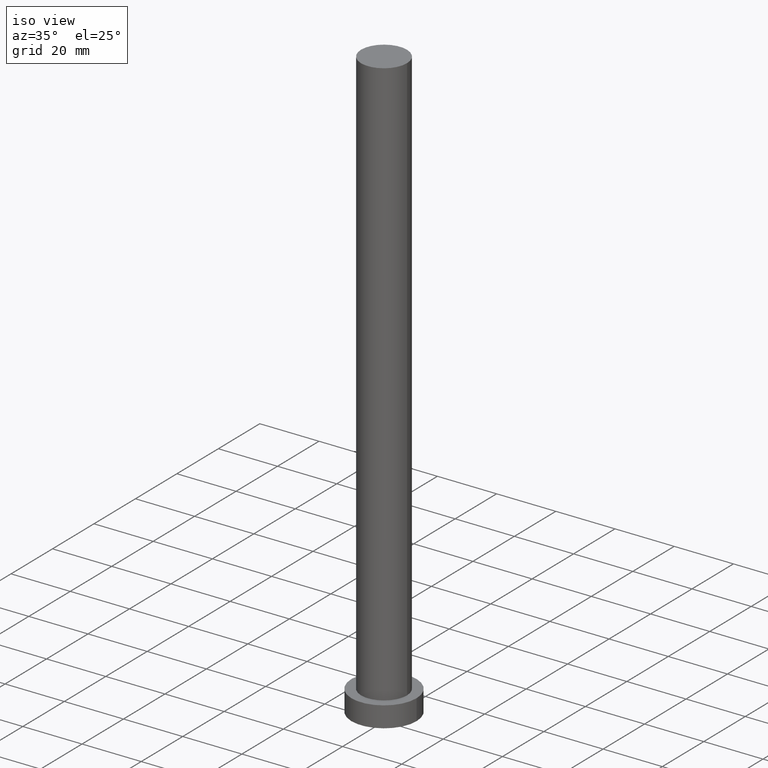
[diagram: clean part render]
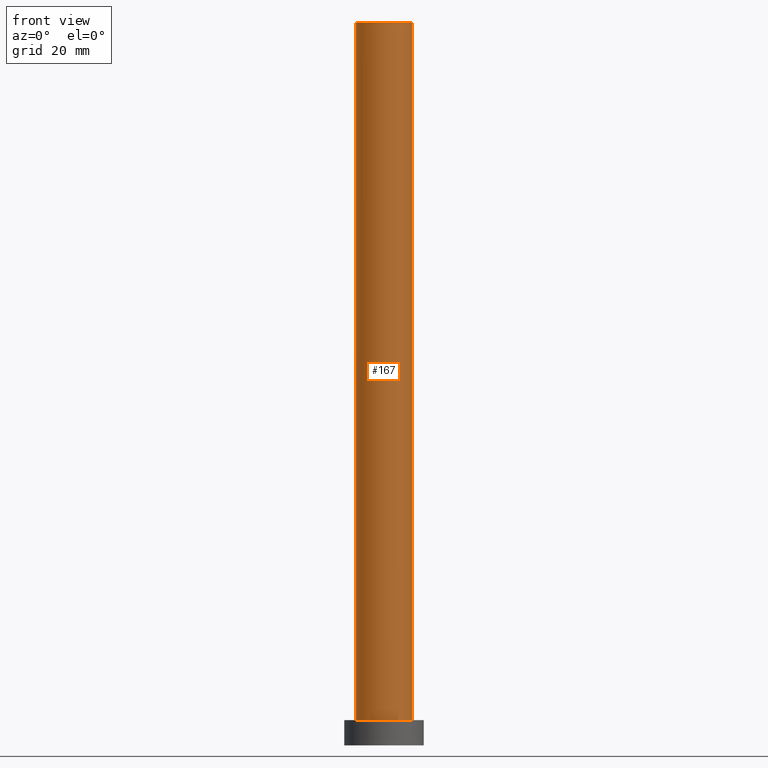
[diagram: tour spotlight — one face highlighted and labeled with its STEP entity id]
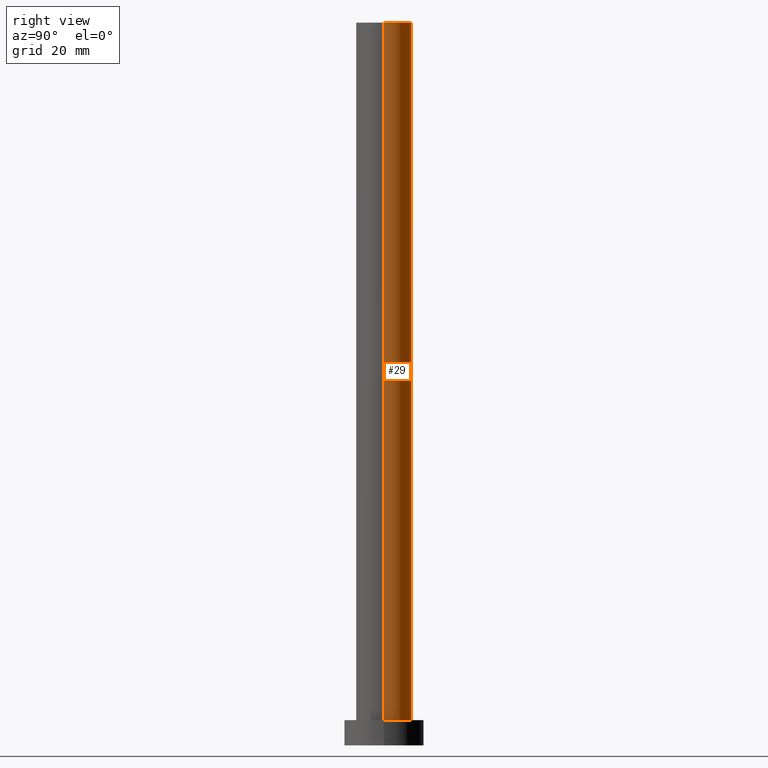
[diagram: tour spotlight — one face highlighted and labeled with its STEP entity id]
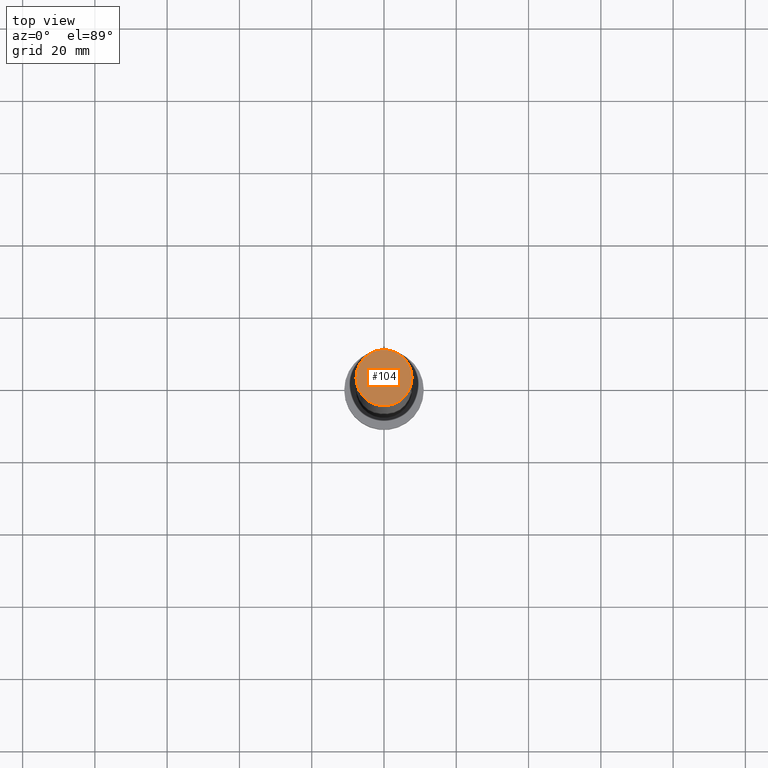
[diagram: tour spotlight — one face highlighted and labeled with its STEP entity id]
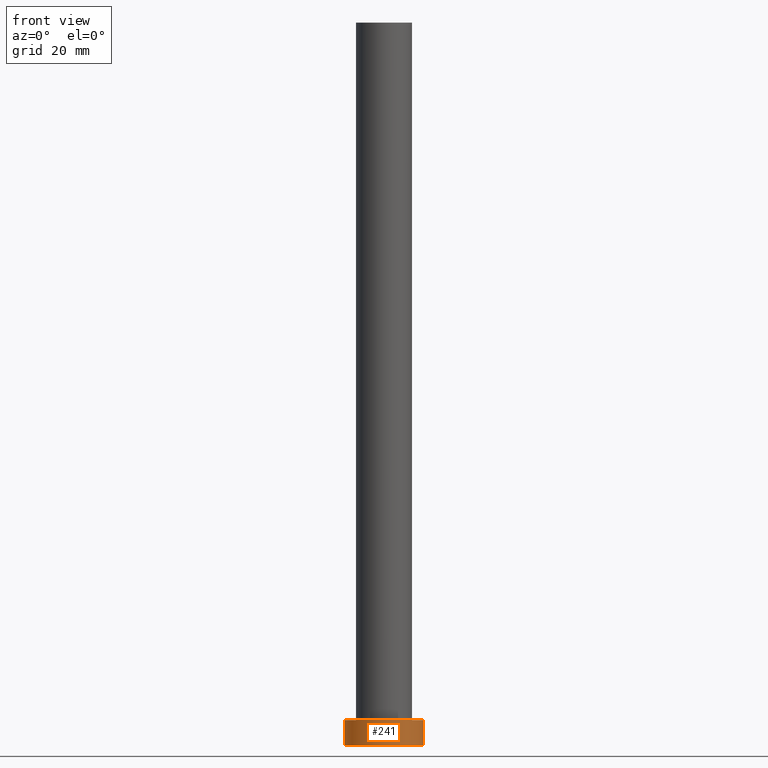
[diagram: tour spotlight — one face highlighted and labeled with its STEP entity id]
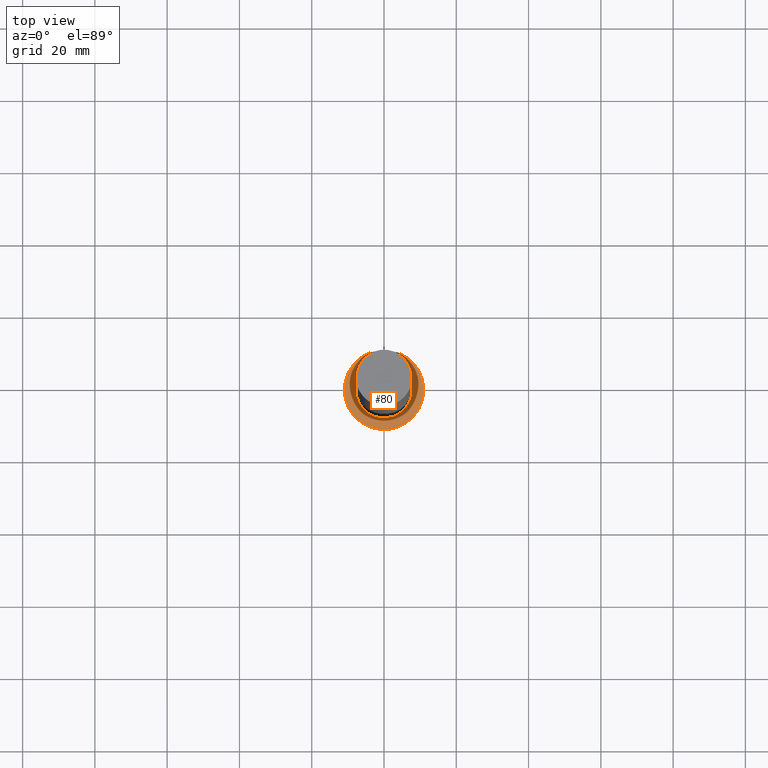
[diagram: tour spotlight — one face highlighted and labeled with its STEP entity id]
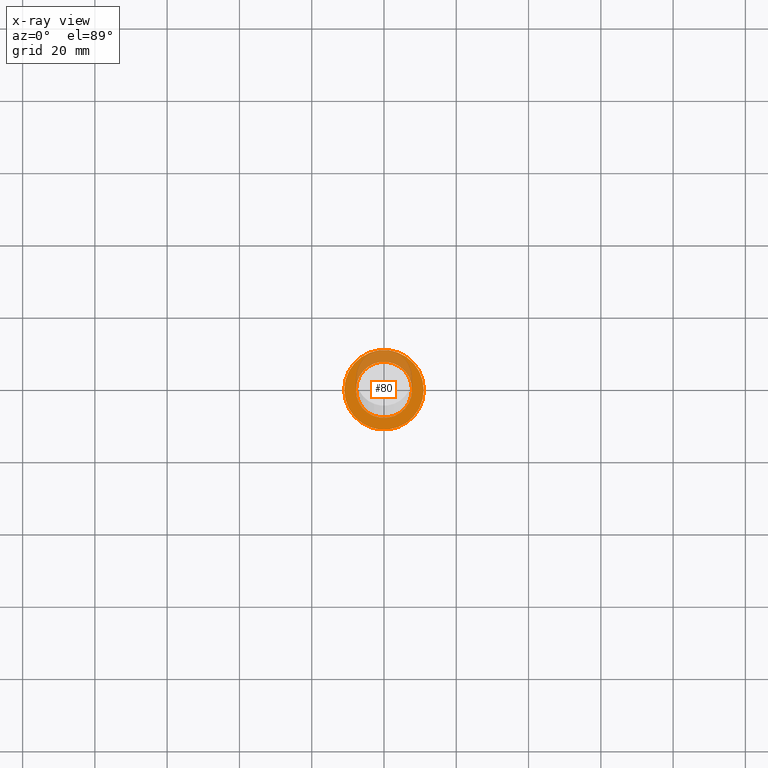
[diagram: x-ray of the same camera — body ghosted, this tour face saturated]
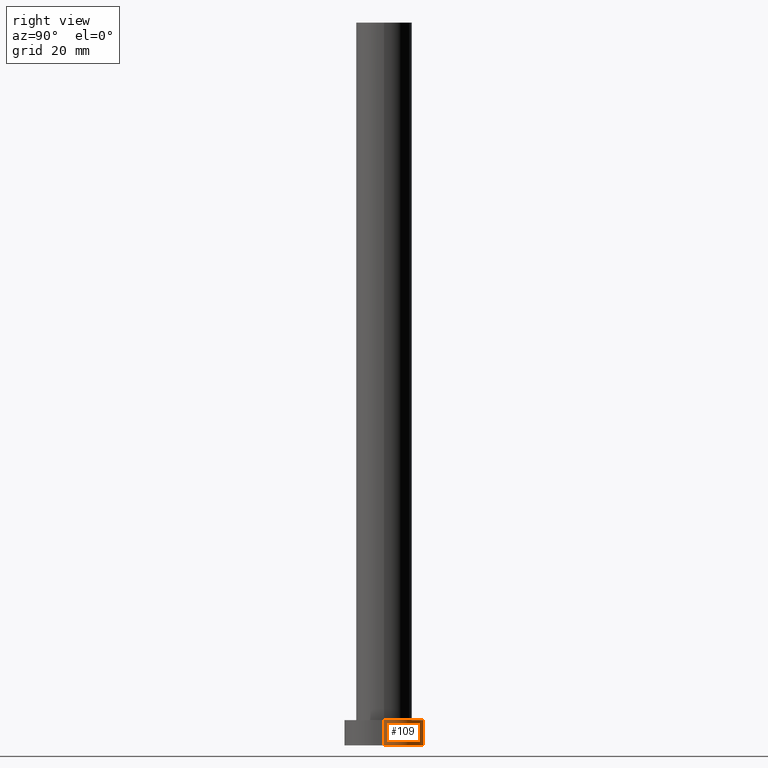
[diagram: tour spotlight — one face highlighted and labeled with its STEP entity id]
A machine part: a face-by-face anatomy tour. The part has 7 B-rep faces; the first image is the clean iso view, then the 6 largest visible faces are spotlighted one at a time (largest first), each with its STEP entity span.

Face 1 — front view, entity #167. In plain terms, the highlighted cylindrical surface (edge-blend (fillet) strip) has radius 7.75 mm, axis along (-0, -0, -1).
Definition (entity closure, byte-faithful):
#13 = LINE ( 'NONE', #198, #194 ) ;
#14 = CARTESIAN_POINT ( 'NONE',  ( -7.750000000000000000, 0.000000000000000000, 7.000000000000000000 ) ) ;
#22 = ORIENTED_EDGE ( 'NONE', *, *, #45, .T. ) ;
#25 = AXIS2_PLACEMENT_3D ( 'NONE', #255, #142, #221 ) ;
#28 = DIRECTION ( 'NONE',  ( 1.000000000000000000, 0.000000000000000000, 0.000000000000000000 ) ) ;
#38 = CARTESIAN_POINT ( 'NONE',  ( 7.750000000000000000, 9.491012693391987787E-16, 200.0000000000000000 ) ) ;
#45 = EDGE_CURVE ( 'NONE', #227, #157, #13, .T. ) ;
#49 = ORIENTED_EDGE ( 'NONE', *, *, #248, .F. ) ;
#56 = CARTESIAN_POINT ( 'NONE',  ( 0.000000000000000000, 0.000000000000000000, 7.000000000000000000 ) ) ;
#63 = CARTESIAN_POINT ( 'NONE',  ( -7.750000000000000000, 0.000000000000000000, 200.0000000000000000 ) ) ;
#72 = CIRCLE ( 'NONE', #94, 7.750000000000000000 ) ;
#82 = DIRECTION ( 'NONE',  ( 0.000000000000000000, 0.000000000000000000, 1.000000000000000000 ) ) ;
#87 = FACE_OUTER_BOUND ( 'NONE', #119, .T. ) ;
#94 = AXIS2_PLACEMENT_3D ( 'NONE', #56, #184, #28 ) ;
#102 = CYLINDRICAL_SURFACE ( 'NONE', #25, 7.750000000000000000 ) ;
#105 = CIRCLE ( 'NONE', #245, 7.750000000000000000 ) ;
#116 = LINE ( 'NONE', #196, #128 ) ;
#117 = EDGE_CURVE ( 'NONE', #157, #173, #72, .T. ) ;
#119 = EDGE_LOOP ( 'NONE', ( #121, #49, #22, #252 ) ) ;
#121 = ORIENTED_EDGE ( 'NONE', *, *, #147, .F. ) ;
#128 = VECTOR ( 'NONE', #197, 1000.000000000000000 ) ;
#142 = DIRECTION ( 'NONE',  ( -0.000000000000000000, -0.000000000000000000, -1.000000000000000000 ) ) ;
#147 = EDGE_CURVE ( 'NONE', #175, #173, #116, .T. ) ;
#157 = VERTEX_POINT ( 'NONE', #14 ) ;
#167 = ADVANCED_FACE ( 'NONE', ( #87 ), #102, .T. ) ;
#173 = VERTEX_POINT ( 'NONE', #186 ) ;
#175 = VERTEX_POINT ( 'NONE', #38 ) ;
#184 = DIRECTION ( 'NONE',  ( 0.000000000000000000, 0.000000000000000000, 1.000000000000000000 ) ) ;
#186 = CARTESIAN_POINT ( 'NONE',  ( 7.750000000000000000, 9.491012693391987787E-16, 7.000000000000000000 ) ) ;
#188 = CARTESIAN_POINT ( 'NONE',  ( 0.000000000000000000, 0.000000000000000000, 200.0000000000000000 ) ) ;
#190 = DIRECTION ( 'NONE',  ( 1.000000000000000000, 0.000000000000000000, 0.000000000000000000 ) ) ;
#194 = VECTOR ( 'NONE', #215, 1000.000000000000000 ) ;
#196 = CARTESIAN_POINT ( 'NONE',  ( 7.750000000000000000, 9.491012693391987787E-16, 200.0000000000000000 ) ) ;
#197 = DIRECTION ( 'NONE',  ( -0.000000000000000000, -0.000000000000000000, -1.000000000000000000 ) ) ;
#198 = CARTESIAN_POINT ( 'NONE',  ( -7.750000000000000000, 0.000000000000000000, 200.0000000000000000 ) ) ;
#215 = DIRECTION ( 'NONE',  ( -0.000000000000000000, -0.000000000000000000, -1.000000000000000000 ) ) ;
#221 = DIRECTION ( 'NONE',  ( -1.000000000000000000, 0.000000000000000000, 0.000000000000000000 ) ) ;
#227 = VERTEX_POINT ( 'NONE', #63 ) ;
#245 = AXIS2_PLACEMENT_3D ( 'NONE', #188, #82, #190 ) ;
#248 = EDGE_CURVE ( 'NONE', #227, #175, #105, .T. ) ;
#252 = ORIENTED_EDGE ( 'NONE', *, *, #117, .T. ) ;
#255 = CARTESIAN_POINT ( 'NONE',  ( 0.000000000000000000, 0.000000000000000000, 200.0000000000000000 ) ) ;

Face 2 — right view, entity #29. In plain terms, the highlighted cylindrical surface (edge-blend (fillet) strip) has radius 7.75 mm, axis along (-0, -0, -1).
Definition (entity closure, byte-faithful):
#1 = DIRECTION ( 'NONE',  ( 0.000000000000000000, 0.000000000000000000, 1.000000000000000000 ) ) ;
#11 = ORIENTED_EDGE ( 'NONE', *, *, #206, .T. ) ;
#13 = LINE ( 'NONE', #198, #194 ) ;
#14 = CARTESIAN_POINT ( 'NONE',  ( -7.750000000000000000, 0.000000000000000000, 7.000000000000000000 ) ) ;
#29 = ADVANCED_FACE ( 'NONE', ( #77 ), #253, .T. ) ;
#30 = DIRECTION ( 'NONE',  ( 1.000000000000000000, 0.000000000000000000, 0.000000000000000000 ) ) ;
#33 = CIRCLE ( 'NONE', #237, 7.750000000000000000 ) ;
#37 = CARTESIAN_POINT ( 'NONE',  ( 0.000000000000000000, 0.000000000000000000, 7.000000000000000000 ) ) ;
#38 = CARTESIAN_POINT ( 'NONE',  ( 7.750000000000000000, 9.491012693391987787E-16, 200.0000000000000000 ) ) ;
#45 = EDGE_CURVE ( 'NONE', #227, #157, #13, .T. ) ;
#51 = CARTESIAN_POINT ( 'NONE',  ( 0.000000000000000000, 0.000000000000000000, 200.0000000000000000 ) ) ;
#63 = CARTESIAN_POINT ( 'NONE',  ( -7.750000000000000000, 0.000000000000000000, 200.0000000000000000 ) ) ;
#68 = ORIENTED_EDGE ( 'NONE', *, *, #86, .F. ) ;
#74 = CARTESIAN_POINT ( 'NONE',  ( 0.000000000000000000, 0.000000000000000000, 200.0000000000000000 ) ) ;
#76 = AXIS2_PLACEMENT_3D ( 'NONE', #74, #122, #229 ) ;
#77 = FACE_OUTER_BOUND ( 'NONE', #208, .T. ) ;
#86 = EDGE_CURVE ( 'NONE', #175, #227, #33, .T. ) ;
#89 = AXIS2_PLACEMENT_3D ( 'NONE', #37, #1, #219 ) ;
#116 = LINE ( 'NONE', #196, #128 ) ;
#122 = DIRECTION ( 'NONE',  ( -0.000000000000000000, -0.000000000000000000, -1.000000000000000000 ) ) ;
#128 = VECTOR ( 'NONE', #197, 1000.000000000000000 ) ;
#145 = CIRCLE ( 'NONE', #89, 7.750000000000000000 ) ;
#147 = EDGE_CURVE ( 'NONE', #175, #173, #116, .T. ) ;
#157 = VERTEX_POINT ( 'NONE', #14 ) ;
#173 = VERTEX_POINT ( 'NONE', #186 ) ;
#175 = VERTEX_POINT ( 'NONE', #38 ) ;
#186 = CARTESIAN_POINT ( 'NONE',  ( 7.750000000000000000, 9.491012693391987787E-16, 7.000000000000000000 ) ) ;
#192 = ORIENTED_EDGE ( 'NONE', *, *, #45, .F. ) ;
#194 = VECTOR ( 'NONE', #215, 1000.000000000000000 ) ;
#196 = CARTESIAN_POINT ( 'NONE',  ( 7.750000000000000000, 9.491012693391987787E-16, 200.0000000000000000 ) ) ;
#197 = DIRECTION ( 'NONE',  ( -0.000000000000000000, -0.000000000000000000, -1.000000000000000000 ) ) ;
#198 = CARTESIAN_POINT ( 'NONE',  ( -7.750000000000000000, 0.000000000000000000, 200.0000000000000000 ) ) ;
#201 = DIRECTION ( 'NONE',  ( 0.000000000000000000, 0.000000000000000000, 1.000000000000000000 ) ) ;
#206 = EDGE_CURVE ( 'NONE', #173, #157, #145, .T. ) ;
#208 = EDGE_LOOP ( 'NONE', ( #68, #222, #11, #192 ) ) ;
#215 = DIRECTION ( 'NONE',  ( -0.000000000000000000, -0.000000000000000000, -1.000000000000000000 ) ) ;
#219 = DIRECTION ( 'NONE',  ( 1.000000000000000000, 0.000000000000000000, 0.000000000000000000 ) ) ;
#222 = ORIENTED_EDGE ( 'NONE', *, *, #147, .T. ) ;
#227 = VERTEX_POINT ( 'NONE', #63 ) ;
#229 = DIRECTION ( 'NONE',  ( -1.000000000000000000, 0.000000000000000000, 0.000000000000000000 ) ) ;
#237 = AXIS2_PLACEMENT_3D ( 'NONE', #51, #201, #30 ) ;
#253 = CYLINDRICAL_SURFACE ( 'NONE', #76, 7.750000000000000000 ) ;

Face 3 — top view, entity #104. In plain terms, the highlighted planar face has unit normal (0, 0, 1).
Definition (entity closure, byte-faithful):
#6 = ORIENTED_EDGE ( 'NONE', *, *, #248, .T. ) ;
#17 = FACE_OUTER_BOUND ( 'NONE', #246, .T. ) ;
#30 = DIRECTION ( 'NONE',  ( 1.000000000000000000, 0.000000000000000000, 0.000000000000000000 ) ) ;
#33 = CIRCLE ( 'NONE', #237, 7.750000000000000000 ) ;
#38 = CARTESIAN_POINT ( 'NONE',  ( 7.750000000000000000, 9.491012693391987787E-16, 200.0000000000000000 ) ) ;
#51 = CARTESIAN_POINT ( 'NONE',  ( 0.000000000000000000, 0.000000000000000000, 200.0000000000000000 ) ) ;
#63 = CARTESIAN_POINT ( 'NONE',  ( -7.750000000000000000, 0.000000000000000000, 200.0000000000000000 ) ) ;
#78 = DIRECTION ( 'NONE',  ( 1.000000000000000000, 0.000000000000000000, -0.000000000000000000 ) ) ;
#82 = DIRECTION ( 'NONE',  ( 0.000000000000000000, 0.000000000000000000, 1.000000000000000000 ) ) ;
#86 = EDGE_CURVE ( 'NONE', #175, #227, #33, .T. ) ;
#99 = PLANE ( 'NONE',  #189 ) ;
#104 = ADVANCED_FACE ( 'NONE', ( #17 ), #99, .T. ) ;
#105 = CIRCLE ( 'NONE', #245, 7.750000000000000000 ) ;
#129 = ORIENTED_EDGE ( 'NONE', *, *, #86, .T. ) ;
#156 = CARTESIAN_POINT ( 'NONE',  ( 0.000000000000000000, 0.000000000000000000, 200.0000000000000000 ) ) ;
#175 = VERTEX_POINT ( 'NONE', #38 ) ;
#183 = DIRECTION ( 'NONE',  ( 0.000000000000000000, 0.000000000000000000, 1.000000000000000000 ) ) ;
#188 = CARTESIAN_POINT ( 'NONE',  ( 0.000000000000000000, 0.000000000000000000, 200.0000000000000000 ) ) ;
#189 = AXIS2_PLACEMENT_3D ( 'NONE', #156, #183, #78 ) ;
#190 = DIRECTION ( 'NONE',  ( 1.000000000000000000, 0.000000000000000000, 0.000000000000000000 ) ) ;
#201 = DIRECTION ( 'NONE',  ( 0.000000000000000000, 0.000000000000000000, 1.000000000000000000 ) ) ;
#227 = VERTEX_POINT ( 'NONE', #63 ) ;
#237 = AXIS2_PLACEMENT_3D ( 'NONE', #51, #201, #30 ) ;
#245 = AXIS2_PLACEMENT_3D ( 'NONE', #188, #82, #190 ) ;
#246 = EDGE_LOOP ( 'NONE', ( #6, #129 ) ) ;
#248 = EDGE_CURVE ( 'NONE', #227, #175, #105, .T. ) ;

Face 4 — front view, entity #241. In plain terms, the highlighted cylindrical surface (partial cylindrical patch) has radius 11 mm, axis along (-0, -0, -1).
Definition (entity closure, byte-faithful):
#12 = CIRCLE ( 'NONE', #111, 11.00000000000000000 ) ;
#15 = ORIENTED_EDGE ( 'NONE', *, *, #24, .F. ) ;
#24 = EDGE_CURVE ( 'NONE', #247, #178, #154, .T. ) ;
#34 = CARTESIAN_POINT ( 'NONE',  ( 11.00000000000000000, 1.347111479062088405E-15, 7.000000000000000000 ) ) ;
#35 = DIRECTION ( 'NONE',  ( 0.000000000000000000, 0.000000000000000000, 1.000000000000000000 ) ) ;
#44 = ORIENTED_EDGE ( 'NONE', *, *, #67, .F. ) ;
#53 = VERTEX_POINT ( 'NONE', #228 ) ;
#54 = EDGE_CURVE ( 'NONE', #53, #243, #231, .T. ) ;
#59 = AXIS2_PLACEMENT_3D ( 'NONE', #202, #35, #127 ) ;
#67 = EDGE_CURVE ( 'NONE', #53, #247, #12, .T. ) ;
#70 = ORIENTED_EDGE ( 'NONE', *, *, #225, .T. ) ;
#71 = AXIS2_PLACEMENT_3D ( 'NONE', #101, #125, #205 ) ;
#83 = CARTESIAN_POINT ( 'NONE',  ( 11.00000000000000000, 1.347111479062088405E-15, 7.000000000000000000 ) ) ;
#96 = DIRECTION ( 'NONE',  ( -0.000000000000000000, -0.000000000000000000, -1.000000000000000000 ) ) ;
#101 = CARTESIAN_POINT ( 'NONE',  ( 0.000000000000000000, 0.000000000000000000, 7.000000000000000000 ) ) ;
#111 = AXIS2_PLACEMENT_3D ( 'NONE', #199, #249, #179 ) ;
#123 = CYLINDRICAL_SURFACE ( 'NONE', #71, 11.00000000000000000 ) ;
#125 = DIRECTION ( 'NONE',  ( -0.000000000000000000, -0.000000000000000000, -1.000000000000000000 ) ) ;
#127 = DIRECTION ( 'NONE',  ( 1.000000000000000000, 0.000000000000000000, 0.000000000000000000 ) ) ;
#132 = VECTOR ( 'NONE', #96, 1000.000000000000000 ) ;
#139 = EDGE_LOOP ( 'NONE', ( #15, #44, #230, #70 ) ) ;
#150 = CARTESIAN_POINT ( 'NONE',  ( -11.00000000000000000, 0.000000000000000000, 7.000000000000000000 ) ) ;
#151 = CIRCLE ( 'NONE', #59, 11.00000000000000000 ) ;
#154 = LINE ( 'NONE', #34, #155 ) ;
#155 = VECTOR ( 'NONE', #254, 1000.000000000000000 ) ;
#164 = CARTESIAN_POINT ( 'NONE',  ( 11.00000000000000000, 1.347111479062088405E-15, 0.000000000000000000 ) ) ;
#178 = VERTEX_POINT ( 'NONE', #164 ) ;
#179 = DIRECTION ( 'NONE',  ( 1.000000000000000000, 0.000000000000000000, 0.000000000000000000 ) ) ;
#187 = FACE_OUTER_BOUND ( 'NONE', #139, .T. ) ;
#199 = CARTESIAN_POINT ( 'NONE',  ( 0.000000000000000000, 0.000000000000000000, 7.000000000000000000 ) ) ;
#202 = CARTESIAN_POINT ( 'NONE',  ( 0.000000000000000000, 0.000000000000000000, 0.000000000000000000 ) ) ;
#204 = CARTESIAN_POINT ( 'NONE',  ( -11.00000000000000000, 0.000000000000000000, 0.000000000000000000 ) ) ;
#205 = DIRECTION ( 'NONE',  ( -1.000000000000000000, 0.000000000000000000, 0.000000000000000000 ) ) ;
#225 = EDGE_CURVE ( 'NONE', #243, #178, #151, .T. ) ;
#228 = CARTESIAN_POINT ( 'NONE',  ( -11.00000000000000000, 0.000000000000000000, 7.000000000000000000 ) ) ;
#230 = ORIENTED_EDGE ( 'NONE', *, *, #54, .T. ) ;
#231 = LINE ( 'NONE', #150, #132 ) ;
#241 = ADVANCED_FACE ( 'NONE', ( #187 ), #123, .T. ) ;
#243 = VERTEX_POINT ( 'NONE', #204 ) ;
#247 = VERTEX_POINT ( 'NONE', #83 ) ;
#249 = DIRECTION ( 'NONE',  ( 0.000000000000000000, 0.000000000000000000, 1.000000000000000000 ) ) ;
#254 = DIRECTION ( 'NONE',  ( -0.000000000000000000, -0.000000000000000000, -1.000000000000000000 ) ) ;

Face 5 — top view, entity #80. An x-ray twin of the same camera follows (body ghosted, this face saturated) — the face is partly hidden behind the body. In plain terms, the highlighted planar face has unit normal (0, 0, 1).
Definition (entity closure, byte-faithful):
#1 = DIRECTION ( 'NONE',  ( 0.000000000000000000, 0.000000000000000000, 1.000000000000000000 ) ) ;
#12 = CIRCLE ( 'NONE', #111, 11.00000000000000000 ) ;
#14 = CARTESIAN_POINT ( 'NONE',  ( -7.750000000000000000, 0.000000000000000000, 7.000000000000000000 ) ) ;
#26 = ORIENTED_EDGE ( 'NONE', *, *, #117, .F. ) ;
#28 = DIRECTION ( 'NONE',  ( 1.000000000000000000, 0.000000000000000000, 0.000000000000000000 ) ) ;
#32 = CARTESIAN_POINT ( 'NONE',  ( 0.000000000000000000, 0.000000000000000000, 7.000000000000000000 ) ) ;
#37 = CARTESIAN_POINT ( 'NONE',  ( 0.000000000000000000, 0.000000000000000000, 7.000000000000000000 ) ) ;
#47 = CIRCLE ( 'NONE', #90, 11.00000000000000000 ) ;
#52 = PLANE ( 'NONE',  #60 ) ;
#53 = VERTEX_POINT ( 'NONE', #228 ) ;
#55 = DIRECTION ( 'NONE',  ( 1.000000000000000000, 0.000000000000000000, -0.000000000000000000 ) ) ;
#56 = CARTESIAN_POINT ( 'NONE',  ( 0.000000000000000000, 0.000000000000000000, 7.000000000000000000 ) ) ;
#60 = AXIS2_PLACEMENT_3D ( 'NONE', #32, #213, #55 ) ;
#61 = DIRECTION ( 'NONE',  ( 0.000000000000000000, 0.000000000000000000, 1.000000000000000000 ) ) ;
#67 = EDGE_CURVE ( 'NONE', #53, #247, #12, .T. ) ;
#72 = CIRCLE ( 'NONE', #94, 7.750000000000000000 ) ;
#73 = ORIENTED_EDGE ( 'NONE', *, *, #206, .F. ) ;
#80 = ADVANCED_FACE ( 'NONE', ( #138, #214 ), #52, .T. ) ;
#83 = CARTESIAN_POINT ( 'NONE',  ( 11.00000000000000000, 1.347111479062088405E-15, 7.000000000000000000 ) ) ;
#89 = AXIS2_PLACEMENT_3D ( 'NONE', #37, #1, #219 ) ;
#90 = AXIS2_PLACEMENT_3D ( 'NONE', #162, #61, #235 ) ;
#91 = ORIENTED_EDGE ( 'NONE', *, *, #67, .T. ) ;
#94 = AXIS2_PLACEMENT_3D ( 'NONE', #56, #184, #28 ) ;
#111 = AXIS2_PLACEMENT_3D ( 'NONE', #199, #249, #179 ) ;
#117 = EDGE_CURVE ( 'NONE', #157, #173, #72, .T. ) ;
#138 = FACE_BOUND ( 'NONE', #176, .T. ) ;
#141 = EDGE_LOOP ( 'NONE', ( #91, #242 ) ) ;
#145 = CIRCLE ( 'NONE', #89, 7.750000000000000000 ) ;
#157 = VERTEX_POINT ( 'NONE', #14 ) ;
#162 = CARTESIAN_POINT ( 'NONE',  ( 0.000000000000000000, 0.000000000000000000, 7.000000000000000000 ) ) ;
#173 = VERTEX_POINT ( 'NONE', #186 ) ;
#176 = EDGE_LOOP ( 'NONE', ( #26, #73 ) ) ;
#179 = DIRECTION ( 'NONE',  ( 1.000000000000000000, 0.000000000000000000, 0.000000000000000000 ) ) ;
#184 = DIRECTION ( 'NONE',  ( 0.000000000000000000, 0.000000000000000000, 1.000000000000000000 ) ) ;
#186 = CARTESIAN_POINT ( 'NONE',  ( 7.750000000000000000, 9.491012693391987787E-16, 7.000000000000000000 ) ) ;
#199 = CARTESIAN_POINT ( 'NONE',  ( 0.000000000000000000, 0.000000000000000000, 7.000000000000000000 ) ) ;
#206 = EDGE_CURVE ( 'NONE', #173, #157, #145, .T. ) ;
#213 = DIRECTION ( 'NONE',  ( 0.000000000000000000, 0.000000000000000000, 1.000000000000000000 ) ) ;
#214 = FACE_OUTER_BOUND ( 'NONE', #141, .T. ) ;
#219 = DIRECTION ( 'NONE',  ( 1.000000000000000000, 0.000000000000000000, 0.000000000000000000 ) ) ;
#228 = CARTESIAN_POINT ( 'NONE',  ( -11.00000000000000000, 0.000000000000000000, 7.000000000000000000 ) ) ;
#235 = DIRECTION ( 'NONE',  ( 1.000000000000000000, 0.000000000000000000, 0.000000000000000000 ) ) ;
#242 = ORIENTED_EDGE ( 'NONE', *, *, #244, .T. ) ;
#244 = EDGE_CURVE ( 'NONE', #247, #53, #47, .T. ) ;
#247 = VERTEX_POINT ( 'NONE', #83 ) ;
#249 = DIRECTION ( 'NONE',  ( 0.000000000000000000, 0.000000000000000000, 1.000000000000000000 ) ) ;

Face 6 — right view, entity #109. In plain terms, the highlighted cylindrical surface (partial cylindrical patch) has radius 11 mm, axis along (-0, -0, -1).
Definition (entity closure, byte-faithful):
#24 = EDGE_CURVE ( 'NONE', #247, #178, #154, .T. ) ;
#31 = EDGE_LOOP ( 'NONE', ( #134, #210, #114, #95 ) ) ;
#34 = CARTESIAN_POINT ( 'NONE',  ( 11.00000000000000000, 1.347111479062088405E-15, 7.000000000000000000 ) ) ;
#43 = AXIS2_PLACEMENT_3D ( 'NONE', #97, #251, #75 ) ;
#47 = CIRCLE ( 'NONE', #90, 11.00000000000000000 ) ;
#53 = VERTEX_POINT ( 'NONE', #228 ) ;
#54 = EDGE_CURVE ( 'NONE', #53, #243, #231, .T. ) ;
#61 = DIRECTION ( 'NONE',  ( 0.000000000000000000, 0.000000000000000000, 1.000000000000000000 ) ) ;
#75 = DIRECTION ( 'NONE',  ( 1.000000000000000000, 0.000000000000000000, 0.000000000000000000 ) ) ;
#83 = CARTESIAN_POINT ( 'NONE',  ( 11.00000000000000000, 1.347111479062088405E-15, 7.000000000000000000 ) ) ;
#90 = AXIS2_PLACEMENT_3D ( 'NONE', #162, #61, #235 ) ;
#95 = ORIENTED_EDGE ( 'NONE', *, *, #54, .F. ) ;
#96 = DIRECTION ( 'NONE',  ( -0.000000000000000000, -0.000000000000000000, -1.000000000000000000 ) ) ;
#97 = CARTESIAN_POINT ( 'NONE',  ( 0.000000000000000000, 0.000000000000000000, 0.000000000000000000 ) ) ;
#100 = DIRECTION ( 'NONE',  ( -1.000000000000000000, 0.000000000000000000, 0.000000000000000000 ) ) ;
#109 = ADVANCED_FACE ( 'NONE', ( #159 ), #118, .T. ) ;
#114 = ORIENTED_EDGE ( 'NONE', *, *, #163, .T. ) ;
#118 = CYLINDRICAL_SURFACE ( 'NONE', #207, 11.00000000000000000 ) ;
#132 = VECTOR ( 'NONE', #96, 1000.000000000000000 ) ;
#134 = ORIENTED_EDGE ( 'NONE', *, *, #244, .F. ) ;
#136 = DIRECTION ( 'NONE',  ( -0.000000000000000000, -0.000000000000000000, -1.000000000000000000 ) ) ;
#150 = CARTESIAN_POINT ( 'NONE',  ( -11.00000000000000000, 0.000000000000000000, 7.000000000000000000 ) ) ;
#154 = LINE ( 'NONE', #34, #155 ) ;
#155 = VECTOR ( 'NONE', #254, 1000.000000000000000 ) ;
#159 = FACE_OUTER_BOUND ( 'NONE', #31, .T. ) ;
#161 = CIRCLE ( 'NONE', #43, 11.00000000000000000 ) ;
#162 = CARTESIAN_POINT ( 'NONE',  ( 0.000000000000000000, 0.000000000000000000, 7.000000000000000000 ) ) ;
#163 = EDGE_CURVE ( 'NONE', #178, #243, #161, .T. ) ;
#164 = CARTESIAN_POINT ( 'NONE',  ( 11.00000000000000000, 1.347111479062088405E-15, 0.000000000000000000 ) ) ;
#178 = VERTEX_POINT ( 'NONE', #164 ) ;
#204 = CARTESIAN_POINT ( 'NONE',  ( -11.00000000000000000, 0.000000000000000000, 0.000000000000000000 ) ) ;
#207 = AXIS2_PLACEMENT_3D ( 'NONE', #233, #136, #100 ) ;
#210 = ORIENTED_EDGE ( 'NONE', *, *, #24, .T. ) ;
#228 = CARTESIAN_POINT ( 'NONE',  ( -11.00000000000000000, 0.000000000000000000, 7.000000000000000000 ) ) ;
#231 = LINE ( 'NONE', #150, #132 ) ;
#233 = CARTESIAN_POINT ( 'NONE',  ( 0.000000000000000000, 0.000000000000000000, 7.000000000000000000 ) ) ;
#235 = DIRECTION ( 'NONE',  ( 1.000000000000000000, 0.000000000000000000, 0.000000000000000000 ) ) ;
#243 = VERTEX_POINT ( 'NONE', #204 ) ;
#244 = EDGE_CURVE ( 'NONE', #247, #53, #47, .T. ) ;
#247 = VERTEX_POINT ( 'NONE', #83 ) ;
#251 = DIRECTION ( 'NONE',  ( 0.000000000000000000, 0.000000000000000000, 1.000000000000000000 ) ) ;
#254 = DIRECTION ( 'NONE',  ( -0.000000000000000000, -0.000000000000000000, -1.000000000000000000 ) ) ;